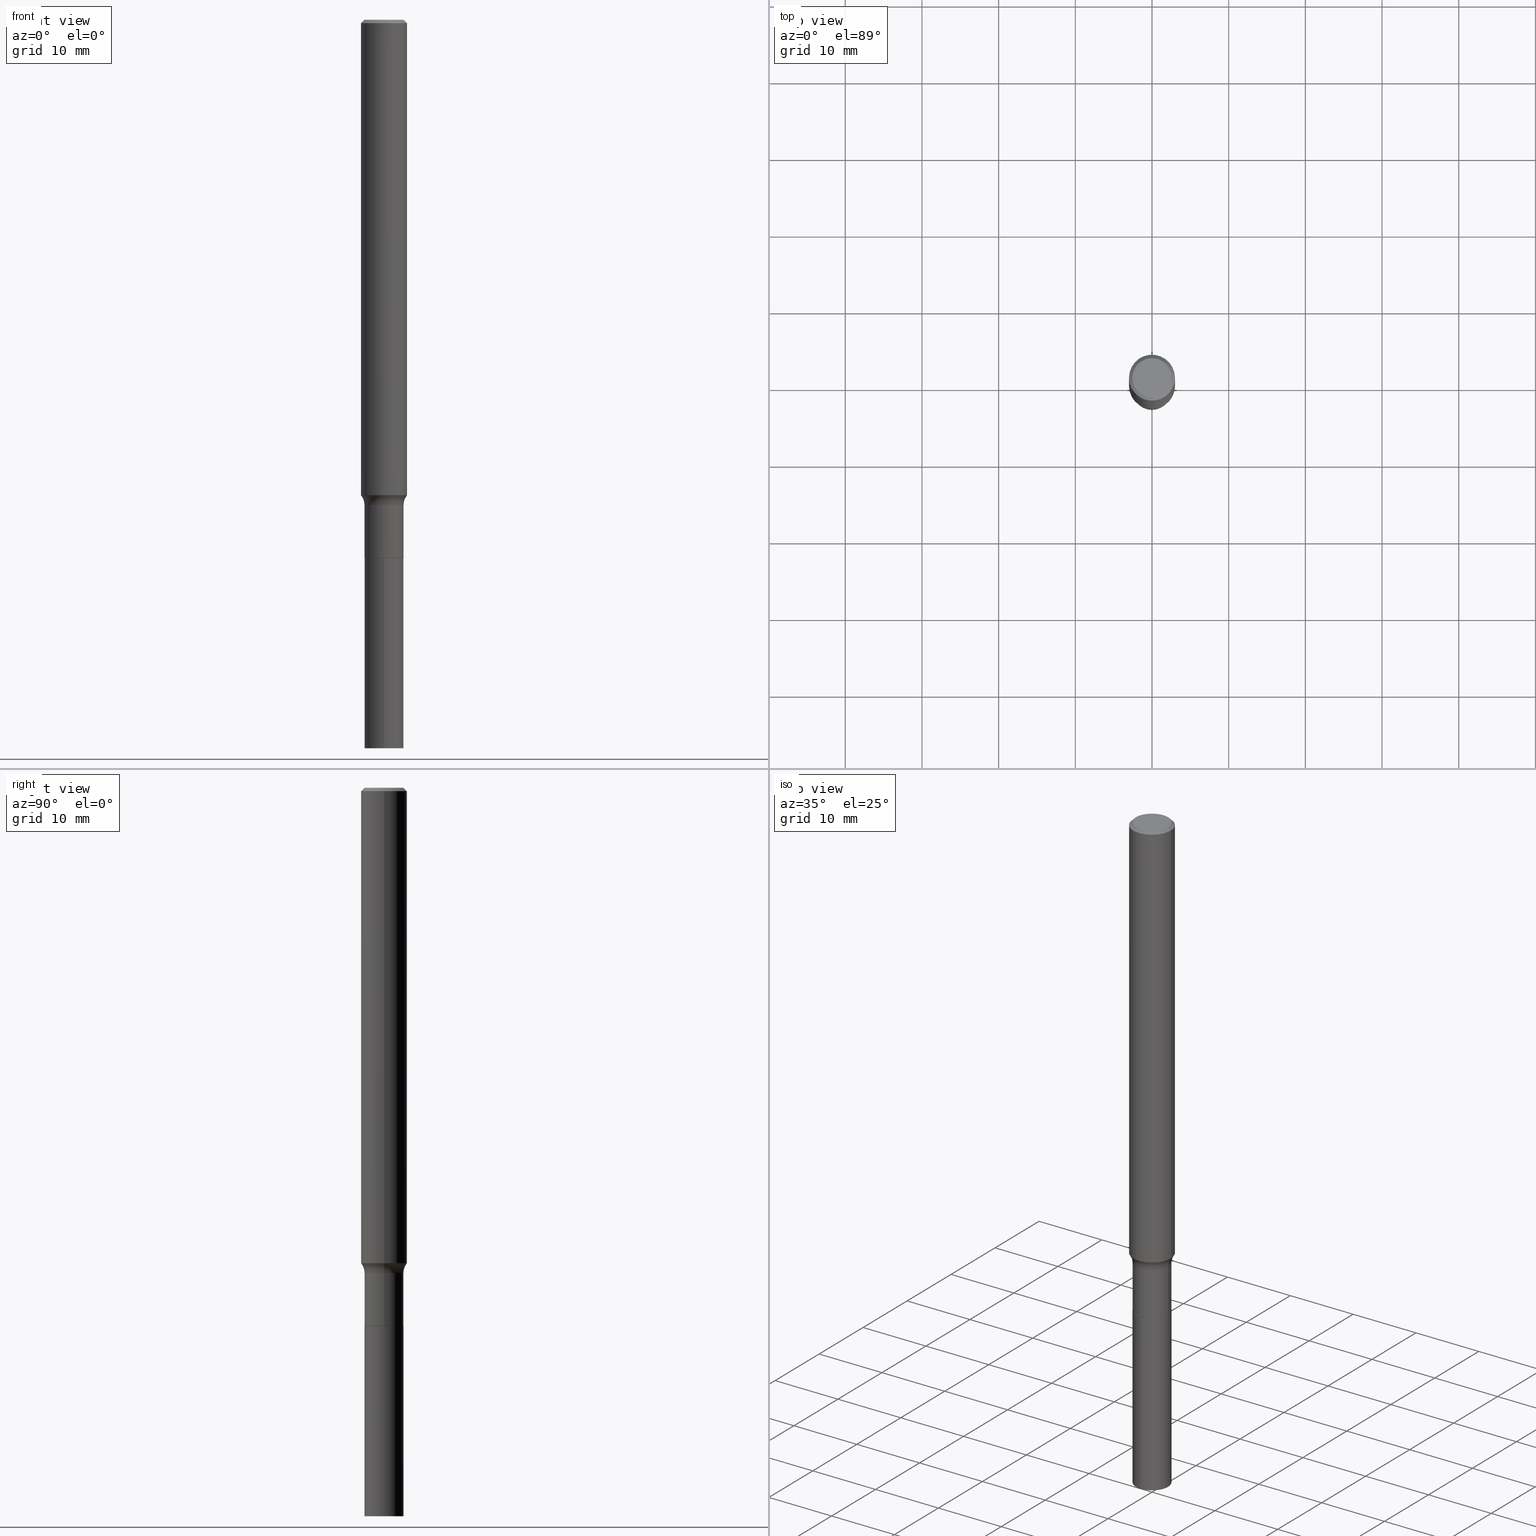
[diagram: canonical four-view strip — front | top / right | iso, engineering-drawing reading convention]
A machine part, canonical four-view strip (front | top / right | iso — engineering-drawing reading convention). The complete STEP part file that produces these views, byte-faithful:
ISO-10303-21;
HEADER;
FILE_DESCRIPTION (( 'STEP AP203' ),
    '1' );
FILE_NAME ('67837.STEP',
    '2024-04-19T16:38:18',
    ( '' ),
    ( '' ),
    'SwSTEP 2.0',
    'SolidWorks 2023',
    '' );
FILE_SCHEMA (( 'CONFIG_CONTROL_DESIGN' ));
ENDSEC;

DATA;
#1 = ORIENTED_EDGE ( 'NONE', *, *, #145, .F. ) ;
#2 = EDGE_CURVE ( 'NONE', #70, #217, #190, .T. ) ;
#3 = CARTESIAN_POINT ( 'NONE',  ( 0.000000000000000000, 0.000000000000000000, 0.000000000000000000 ) ) ;
#4 = ORIENTED_EDGE ( 'NONE', *, *, #209, .F. ) ;
#5 = ORIENTED_EDGE ( 'NONE', *, *, #417, .F. ) ;
#6 = CC_DESIGN_PERSON_AND_ORGANIZATION_ASSIGNMENT ( #416, #195, ( #339 ) ) ;
#7 = DIRECTION ( 'NONE',  ( 1.000000000000000000, -6.982962677686266711E-15, 4.875668750515085695E-29 ) ) ;
#8 = EDGE_LOOP ( 'NONE', ( #297, #386 ) ) ;
#9 = APPROVAL_STATUS ( 'not_yet_approved' ) ;
#10 = EDGE_LOOP ( 'NONE', ( #435, #31, #326, #206 ) ) ;
#11 = ORIENTED_EDGE ( 'NONE', *, *, #396, .F. ) ;
#12 = CARTESIAN_POINT ( 'NONE',  ( -0.09990000000000000269, -8.935179815292927924E-15, -2.763200000000000323 ) ) ;
#13 = CARTESIAN_POINT ( 'NONE',  ( -0.1004000000000000031, -8.458387422303918210E-15, -2.762700000000000156 ) ) ;
#14 = EDGE_CURVE ( 'NONE', #118, #21, #308, .T. ) ;
#15 = DIRECTION ( 'NONE',  ( 1.000000000000000000, 0.000000000000000000, 0.000000000000000000 ) ) ;
#16 = CARTESIAN_POINT ( 'NONE',  ( 6.757319405250769322E-29, -9.647661235491380709E-15, -2.763200000000000323 ) ) ;
#17 = EDGE_LOOP ( 'NONE', ( #432, #225 ) ) ;
#18 = PERSON_AND_ORGANIZATION_ROLE ( 'design_supplier' ) ;
#19 = VECTOR ( 'NONE', #176, 39.37007874015748143 ) ;
#20 = CYLINDRICAL_SURFACE ( 'NONE', #222, 0.1004000000000000031 ) ;
#21 = VERTEX_POINT ( 'NONE', #72 ) ;
#22 = APPROVAL ( #9, 'UNSPECIFIED' ) ;
#23 = DIRECTION ( 'NONE',  ( 1.000000000000000000, -6.982962677686274599E-15, 0.000000000000000000 ) ) ;
#24 = CARTESIAN_POINT ( 'NONE',  ( -7.010894528396336292E-16, -0.1004000000000096482, -2.763199999999999434 ) ) ;
#25 = DIRECTION ( 'NONE',  ( -2.445468806185136597E-29, 3.491481338843145583E-15, 1.000000000000000000 ) ) ;
#26 = AXIS2_PLACEMENT_3D ( 'NONE', #418, #270, #374 ) ;
#27 = CC_DESIGN_APPROVAL ( #258, ( #339 ) ) ;
#28 = DIRECTION ( 'NONE',  ( 6.982962677686265922E-15, 1.000000000000000000, -3.501188089901729576E-15 ) ) ;
#29 = EDGE_CURVE ( 'NONE', #70, #219, #37, .T. ) ;
#30 = CARTESIAN_POINT ( 'NONE',  ( 9.139920139182118548E-29, -1.306832199932537301E-14, -3.740200000000000635 ) ) ;
#31 = ORIENTED_EDGE ( 'NONE', *, *, #329, .T. ) ;
#32 = DIRECTION ( 'NONE',  ( -2.438690618148768155E-29, 3.501188089901729576E-15, 1.000000000000000000 ) ) ;
#33 = AXIS2_PLACEMENT_3D ( 'NONE', #198, #334, #408 ) ;
#34 = ORIENTED_EDGE ( 'NONE', *, *, #396, .T. ) ;
#35 = DIRECTION ( 'NONE',  ( -2.445468806185136597E-29, 3.491481338843145583E-15, 1.000000000000000000 ) ) ;
#36 = DIRECTION ( 'NONE',  ( -2.438690618148768155E-29, 3.501188089901729576E-15, 1.000000000000000000 ) ) ;
#37 = LINE ( 'NONE', #400, #458 ) ;
#38 = LOCAL_TIME ( 12, 38, 18.00000000000000000, #81 ) ;
#39 = EDGE_CURVE ( 'NONE', #274, #409, #285, .T. ) ;
#40 = AXIS2_PLACEMENT_3D ( 'NONE', #411, #232, #196 ) ;
#41 = AXIS2_PLACEMENT_3D ( 'NONE', #3, #431, #397 ) ;
#42 = EDGE_LOOP ( 'NONE', ( #109, #398, #1, #152 ) ) ;
#43 = CARTESIAN_POINT ( 'NONE',  ( 0.1181000000000000105, -8.865394841523548556E-16, -0.01771500000000011607 ) ) ;
#44 = CARTESIAN_POINT ( 'NONE',  ( 7.015701749847187307E-46, -1.001656274515824970E-31, -2.868857591682589212E-17 ) ) ;
#45 = ORIENTED_EDGE ( 'NONE', *, *, #305, .T. ) ;
#46 = COORDINATED_UNIVERSAL_TIME_OFFSET ( 5, 0, .BEHIND. ) ;
#47 = CARTESIAN_POINT ( 'NONE',  ( -0.1003999999999999893, 7.133849067031405103E-16, -4.938610830615924293E-30 ) ) ;
#48 = AXIS2_PLACEMENT_3D ( 'NONE', #80, #267, #23 ) ;
#49 = CC_DESIGN_PERSON_AND_ORGANIZATION_ASSIGNMENT ( #442, #128, ( #389 ) ) ;
#50 = FACE_OUTER_BOUND ( 'NONE', #146, .T. ) ;
#51 = CARTESIAN_POINT ( 'NONE',  ( 6.756096670847677642E-29, -9.645915494821958416E-15, -2.762700000000000156 ) ) ;
#52 = PERSON_AND_ORGANIZATION ( #224, #350 ) ;
#53 = FACE_OUTER_BOUND ( 'NONE', #94, .T. ) ;
#54 = ORIENTED_EDGE ( 'NONE', *, *, #425, .F. ) ;
#55 = CC_DESIGN_PERSON_AND_ORGANIZATION_ASSIGNMENT ( #269, #92, ( #200 ) ) ;
#56 = CC_DESIGN_SECURITY_CLASSIFICATION ( #200, ( #293 ) ) ;
#57 = DATE_AND_TIME ( #120, #260 ) ;
#58 = CIRCLE ( 'NONE', #48, 0.1003999999999999754 ) ;
#59 = CARTESIAN_POINT ( 'NONE',  ( 7.133849067032322153E-16, 0.1003999999999903719, -2.763200000000000767 ) ) ;
#60 = DIRECTION ( 'NONE',  ( 2.438690618148767874E-29, -3.501188089901729576E-15, -1.000000000000000000 ) ) ;
#61 = PRODUCT_DEFINITION_SHAPE ( 'NONE', 'NONE',  #339 ) ;
#62 = CARTESIAN_POINT ( 'NONE',  ( 0.000000000000000000, 0.000000000000000000, 0.000000000000000000 ) ) ;
#63 = ORIENTED_EDGE ( 'NONE', *, *, #318, .F. ) ;
#64 = APPLICATION_CONTEXT ( 'configuration controlled 3d designs of mechanical parts and assemblies' ) ;
#65 = DIRECTION ( 'NONE',  ( -2.445468806185136597E-29, 3.491481338843145583E-15, 1.000000000000000000 ) ) ;
#66 = AXIS2_PLACEMENT_3D ( 'NONE', #164, #312, #376 ) ;
#67 = DIRECTION ( 'NONE',  ( 0.7071067811865459074, -7.319954787623251312E-15, -0.7071067811865492381 ) ) ;
#68 = CC_DESIGN_DATE_AND_TIME_ASSIGNMENT ( #275, #155, ( #339 ) ) ;
#69 = DIRECTION ( 'NONE',  ( -1.000000000000000000, 6.982962677686265922E-15, -4.876176775795935793E-29 ) ) ;
#70 = VERTEX_POINT ( 'NONE', #328 ) ;
#71 = CARTESIAN_POINT ( 'NONE',  ( 0.1803999999999999770, -9.957355630246762542E-15, -2.491100000000000314 ) ) ;
#72 = CARTESIAN_POINT ( 'NONE',  ( -7.010894528396336292E-16, -0.1004000000000096482, -2.763199999999999434 ) ) ;
#73 = ORIENTED_EDGE ( 'NONE', *, *, #425, .T. ) ;
#74 = ORIENTED_EDGE ( 'NONE', *, *, #29, .F. ) ;
#75 = ADVANCED_FACE ( 'NONE', ( #221 ), #466, .T. ) ;
#76 = ORIENTED_EDGE ( 'NONE', *, *, #231, .F. ) ;
#77 = VECTOR ( 'NONE', #205, 39.37007874015748143 ) ;
#78 = DIRECTION ( 'NONE',  ( -2.445468806185136597E-29, 3.491481338843145583E-15, 1.000000000000000000 ) ) ;
#79 = CALENDAR_DATE ( 2024, 19, 4 ) ;
#80 = CARTESIAN_POINT ( 'NONE',  ( 6.091907343087794334E-29, -8.697629163192159813E-15, -2.491100000000000314 ) ) ;
#81 = COORDINATED_UNIVERSAL_TIME_OFFSET ( 5, 0, .BEHIND. ) ;
#82 = CARTESIAN_POINT ( 'NONE',  ( -0.09990000000000000269, -8.937829042467041492E-15, -2.763200000000000323 ) ) ;
#83 = CIRCLE ( 'NONE', #292, 0.1003850000000000159 ) ;
#84 = LOCAL_TIME ( 12, 38, 18.00000000000000000, #46 ) ;
#85 = COORDINATED_UNIVERSAL_TIME_OFFSET ( 5, 0, .BEHIND. ) ;
#86 = DIRECTION ( 'NONE',  ( -6.982962677686266711E-15, -1.000000000000000000, 5.441928274231599754E-15 ) ) ;
#87 = ORIENTED_EDGE ( 'NONE', *, *, #167, .F. ) ;
#88 = DIRECTION ( 'NONE',  ( 0.000000000000000000, 0.000000000000000000, 1.000000000000000000 ) ) ;
#89 = DIRECTION ( 'NONE',  ( 2.445468806185136597E-29, -3.491481338843145583E-15, -1.000000000000000000 ) ) ;
#90 = EDGE_CURVE ( 'NONE', #242, #365, #315, .T. ) ;
#91 = EDGE_LOOP ( 'NONE', ( #172, #303, #289, #4 ) ) ;
#92 = PERSON_AND_ORGANIZATION_ROLE ( 'classification_officer' ) ;
#93 = CARTESIAN_POINT ( 'NONE',  ( 7.133849067032080565E-16, 0.1003999999999903581, -2.763200000000000767 ) ) ;
#94 = EDGE_LOOP ( 'NONE', ( #149, #187, #462, #378 ) ) ;
#95 = CIRCLE ( 'NONE', #40, 0.1181000000000000105 ) ;
#96 = CARTESIAN_POINT ( 'NONE',  ( -0.1181000000000001632, 8.391509709326794790E-16, -5.809262341591051491E-30 ) ) ;
#97 = CARTESIAN_POINT ( 'NONE',  ( 6.757319405250769322E-29, -9.647661235491380709E-15, -2.763200000000000323 ) ) ;
#98 = ORIENTED_EDGE ( 'NONE', *, *, #119, .T. ) ;
#99 = DIRECTION ( 'NONE',  ( -1.000000000000000000, 6.982962677686267499E-15, 0.000000000000000000 ) ) ;
#100 = FACE_OUTER_BOUND ( 'NONE', #10, .T. ) ;
#101 = CIRCLE ( 'NONE', #377, 0.1003999999999999754 ) ;
#102 = APPROVAL_PERSON_ORGANIZATION ( #331, #22, #117 ) ;
#103 = DIRECTION ( 'NONE',  ( -6.982962677686266711E-15, -1.000000000000000000, 5.441928274231599754E-15 ) ) ;
#104 = EDGE_CURVE ( 'NONE', #300, #353, #83, .T. ) ;
#105 = ORIENTED_EDGE ( 'NONE', *, *, #268, .T. ) ;
#106 = MANIFOLD_SOLID_BREP ( 'Body-Move/Copy2[2]', #460 ) ;
#107 = CIRCLE ( 'NONE', #434, 0.1003850000000000159 ) ;
#108 = DIRECTION ( 'NONE',  ( -2.445468806185136597E-29, 3.491481338843145583E-15, 1.000000000000000000 ) ) ;
#109 = ORIENTED_EDGE ( 'NONE', *, *, #310, .T. ) ;
#110 = EDGE_CURVE ( 'NONE', #134, #391, #245, .T. ) ;
#111 = DIRECTION ( 'NONE',  ( -2.445468806185136877E-29, 3.491481338843145188E-15, 1.000000000000000000 ) ) ;
#112 = ORIENTED_EDGE ( 'NONE', *, *, #90, .F. ) ;
#113 = VERTEX_POINT ( 'NONE', #194 ) ;
#114 = CARTESIAN_POINT ( 'NONE',  ( 0.09990000000000000269, -1.034525920699223878E-14, -2.763200000000000323 ) ) ;
#115 = DIRECTION ( 'NONE',  ( -2.445468806185136597E-29, 3.491481338843145583E-15, 1.000000000000000000 ) ) ;
#116 = VECTOR ( 'NONE', #243, 39.37007874015748143 ) ;
#117 = APPROVAL_ROLE ( '' ) ;
#118 = VERTEX_POINT ( 'NONE', #59 ) ;
#119 = EDGE_CURVE ( 'NONE', #238, #217, #228, .T. ) ;
#120 = CALENDAR_DATE ( 2024, 19, 4 ) ;
#121 = CARTESIAN_POINT ( 'NONE',  ( -0.1181000000000003020, -7.683252086848746788E-15, -2.440913248760255172 ) ) ;
#122 = CARTESIAN_POINT ( 'NONE',  ( 4.332147990156997620E-31, -6.185159191760672860E-17, -0.01771500000000011607 ) ) ;
#123 = ORIENTED_EDGE ( 'NONE', *, *, #268, .F. ) ;
#124 = CONICAL_SURFACE ( 'NONE', #362, 0.1181000000000000105, 0.7853981633974459475 ) ;
#125 = ADVANCED_FACE ( 'NONE', ( #369 ), #188, .F. ) ;
#126 = DATE_AND_TIME ( #454, #180 ) ;
#127 = LINE ( 'NONE', #47, #343 ) ;
#128 = PERSON_AND_ORGANIZATION_ROLE ( 'design_owner' ) ;
#129 = DIRECTION ( 'NONE',  ( -6.982962677686265922E-15, -1.000000000000000000, 3.501188089901729576E-15 ) ) ;
#130 = DIRECTION ( 'NONE',  ( 1.000000000000000000, -6.982962677686267499E-15, 0.000000000000000000 ) ) ;
#131 = ORIENTED_EDGE ( 'NONE', *, *, #248, .T. ) ;
#132 = AXIS2_PLACEMENT_3D ( 'NONE', #30, #32, #174 ) ;
#133 = DIRECTION ( 'NONE',  ( -2.438088387897960049E-29, 3.491481338843145188E-15, 1.000000000000000000 ) ) ;
#134 = VERTEX_POINT ( 'NONE', #341 ) ;
#135 = EDGE_CURVE ( 'NONE', #299, #238, #349, .T. ) ;
#136 = FACE_OUTER_BOUND ( 'NONE', #348, .T. ) ;
#137 = DIRECTION ( 'NONE',  ( 2.445468806185136597E-29, -3.491481338843145583E-15, -1.000000000000000000 ) ) ;
#138 = CC_DESIGN_PERSON_AND_ORGANIZATION_ASSIGNMENT ( #163, #18, ( #293 ) ) ;
#139 = PLANE ( 'NONE',  #414 ) ;
#140 = TOROIDAL_SURFACE ( 'NONE', #467, 0.1803999999999999770, 0.08000000000000002942 ) ;
#141 = ORIENTED_EDGE ( 'NONE', *, *, #252, .F. ) ;
#142 = LENGTH_MEASURE_WITH_UNIT ( LENGTH_MEASURE( 0.02539999999999999897 ), #216 );
#143 = DIRECTION ( 'NONE',  ( -2.445468806185136877E-29, 3.491481338843145188E-15, 1.000000000000000000 ) ) ;
#144 = VECTOR ( 'NONE', #336, 39.37007874015748143 ) ;
#145 = EDGE_CURVE ( 'NONE', #21, #118, #168, .T. ) ;
#146 = EDGE_LOOP ( 'NONE', ( #141, #325, #278, #444 ) ) ;
#147 = ORIENTED_EDGE ( 'NONE', *, *, #2, .F. ) ;
#148 = CYLINDRICAL_SURFACE ( 'NONE', #41, 0.1003999999999999893 ) ;
#149 = ORIENTED_EDGE ( 'NONE', *, *, #329, .F. ) ;
#150 = ORIENTED_EDGE ( 'NONE', *, *, #252, .T. ) ;
#151 = ADVANCED_FACE ( 'NONE', ( #420 ), #423, .T. ) ;
#152 = ORIENTED_EDGE ( 'NONE', *, *, #305, .F. ) ;
#153 = VECTOR ( 'NONE', #371, 39.37007874015748143 ) ;
#154 = FACE_OUTER_BOUND ( 'NONE', #42, .T. ) ;
#155 = DATE_TIME_ROLE ( 'creation_date' ) ;
#156 = DIRECTION ( 'NONE',  ( -2.445468806185136597E-29, 3.491481338843145583E-15, 1.000000000000000000 ) ) ;
#157 = EDGE_LOOP ( 'NONE', ( #421, #443, #73, #76 ) ) ;
#158 = PERSON_AND_ORGANIZATION_ROLE ( 'creator' ) ;
#159 = DIRECTION ( 'NONE',  ( 1.000000000000000000, -6.982962677686266711E-15, 4.875668750515085695E-29 ) ) ;
#160 = EDGE_LOOP ( 'NONE', ( #63, #11, #105, #412 ) ) ;
#161 =( GEOMETRIC_REPRESENTATION_CONTEXT ( 3 ) GLOBAL_UNCERTAINTY_ASSIGNED_CONTEXT ( ( #429 ) ) GLOBAL_UNIT_ASSIGNED_CONTEXT ( ( #298, #261, #366 ) ) REPRESENTATION_CONTEXT ( 'NONE', 'WORKASPACE' ) );
#162 = AXIS2_PLACEMENT_3D ( 'NONE', #220, #35, #212 ) ;
#163 = PERSON_AND_ORGANIZATION ( #224, #350 ) ;
#164 = CARTESIAN_POINT ( 'NONE',  ( 0.000000000000000000, 0.000000000000000000, 0.000000000000000000 ) ) ;
#165 = DIRECTION ( 'NONE',  ( -2.445468806185136877E-29, 3.491481338843145188E-15, 1.000000000000000000 ) ) ;
#166 = DIRECTION ( 'NONE',  ( -2.445468806185136597E-29, 3.491481338843145583E-15, 1.000000000000000000 ) ) ;
#167 = EDGE_CURVE ( 'NONE', #134, #118, #235, .T. ) ;
#168 = CIRCLE ( 'NONE', #26, 0.1004000000000000031 ) ;
#169 = CARTESIAN_POINT ( 'NONE',  ( 0.000000000000000000, 0.000000000000000000, 0.000000000000000000 ) ) ;
#170 = ADVANCED_FACE ( 'NONE', ( #50 ), #140, .F. ) ;
#171 = CARTESIAN_POINT ( 'NONE',  ( 0.1181000000000000105, -8.720764054544246253E-16, -0.01771500000000011607 ) ) ;
#172 = ORIENTED_EDGE ( 'NONE', *, *, #215, .F. ) ;
#173 = AXIS2_PLACEMENT_3D ( 'NONE', #404, #78, #367 ) ;
#174 = DIRECTION ( 'NONE',  ( -6.982962677686266711E-15, -1.000000000000000000, 5.441928274231598965E-15 ) ) ;
#175 = AXIS2_PLACEMENT_3D ( 'NONE', #430, #133, #281 ) ;
#176 = DIRECTION ( 'NONE',  ( 0.7071067811864267805, -2.468850131080992517E-15, 0.7071067811866682540 ) ) ;
#177 = EDGE_LOOP ( 'NONE', ( #360, #199 ) ) ;
#178 = EDGE_LOOP ( 'NONE', ( #301, #257, #131, #123 ) ) ;
#179 = ADVANCED_FACE ( 'NONE', ( #154 ), #20, .T. ) ;
#180 = LOCAL_TIME ( 12, 38, 18.00000000000000000, #85 ) ;
#181 = LINE ( 'NONE', #324, #286 ) ;
#182 = ORIENTED_EDGE ( 'NONE', *, *, #209, .T. ) ;
#183 = AXIS2_PLACEMENT_3D ( 'NONE', #456, #306, #129 ) ;
#184 = APPROVAL_PERSON_ORGANIZATION ( #407, #186, #419 ) ;
#185 = DIRECTION ( 'NONE',  ( 1.000000000000000000, -6.982962677686267499E-15, 0.000000000000000000 ) ) ;
#186 = APPROVAL ( #236, 'UNSPECIFIED' ) ;
#187 = ORIENTED_EDGE ( 'NONE', *, *, #90, .T. ) ;
#188 = PLANE ( 'NONE',  #183 ) ;
#189 = AXIS2_PLACEMENT_3D ( 'NONE', #255, #395, #436 ) ;
#190 = CIRCLE ( 'NONE', #189, 0.1004000000000000031 ) ;
#191 = ORIENTED_EDGE ( 'NONE', *, *, #135, .T. ) ;
#192 = CIRCLE ( 'NONE', #132, 0.1004000000000000170 ) ;
#193 = APPROVAL_DATE_TIME ( #126, #258 ) ;
#194 = CARTESIAN_POINT ( 'NONE',  ( -0.1003999999999999754, -8.458387422303918210E-15, -2.491100000000000314 ) ) ;
#195 = PERSON_AND_ORGANIZATION_ROLE ( 'creator' ) ;
#196 = DIRECTION ( 'NONE',  ( 1.000000000000000000, -6.982962677686267499E-15, 0.000000000000000000 ) ) ;
#197 = APPROVAL_STATUS ( 'not_yet_approved' ) ;
#198 = CARTESIAN_POINT ( 'NONE',  ( 9.139920139182118548E-29, -1.306832199932537301E-14, -3.740200000000000635 ) ) ;
#199 = ORIENTED_EDGE ( 'NONE', *, *, #14, .T. ) ;
#200 = SECURITY_CLASSIFICATION ( '', '', #311 ) ;
#201 = CYLINDRICAL_SURFACE ( 'NONE', #66, 0.1181000000000001632 ) ;
#202 = EDGE_LOOP ( 'NONE', ( #330, #401, #296, #74 ) ) ;
#203 = ADVANCED_FACE ( 'NONE', ( #53 ), #201, .T. ) ;
#204 = CARTESIAN_POINT ( 'NONE',  ( 6.091907343087794334E-29, -8.697629163192159813E-15, -2.491100000000000314 ) ) ;
#205 = DIRECTION ( 'NONE',  ( -2.438690618148768155E-29, 3.501188089901729576E-15, 1.000000000000000000 ) ) ;
#206 = ORIENTED_EDGE ( 'NONE', *, *, #433, .F. ) ;
#207 = VECTOR ( 'NONE', #67, 39.37007874015748143 ) ;
#208 = CARTESIAN_POINT ( 'NONE',  ( -0.1181000000000000105, 7.628363003171415710E-16, -0.01771500000000011607 ) ) ;
#209 = EDGE_CURVE ( 'NONE', #113, #219, #58, .T. ) ;
#210 = DIRECTION ( 'NONE',  ( -2.438690618148768155E-29, 3.501188089901729576E-15, 1.000000000000000000 ) ) ;
#211 = CYLINDRICAL_SURFACE ( 'NONE', #393, 0.1181000000000001632 ) ;
#212 = DIRECTION ( 'NONE',  ( 1.000000000000000000, -6.982962677686265133E-15, 4.883557194083111780E-29 ) ) ;
#213 = VECTOR ( 'NONE', #279, 39.37007874015748143 ) ;
#214 = EDGE_LOOP ( 'NONE', ( #191, #98, #147, #54 ) ) ;
#215 = EDGE_CURVE ( 'NONE', #217, #113, #127, .T. ) ;
#216 =( LENGTH_UNIT ( ) NAMED_UNIT ( * ) SI_UNIT ( $, .METRE. ) );
#217 = VERTEX_POINT ( 'NONE', #13 ) ;
#218 = DIRECTION ( 'NONE',  ( 1.000000000000000000, -6.982962677686267499E-15, 0.000000000000000000 ) ) ;
#219 = VERTEX_POINT ( 'NONE', #313 ) ;
#220 = CARTESIAN_POINT ( 'NONE',  ( 6.091907343087794334E-29, -8.697629163192159813E-15, -2.491100000000000314 ) ) ;
#221 = FACE_OUTER_BOUND ( 'NONE', #214, .T. ) ;
#222 = AXIS2_PLACEMENT_3D ( 'NONE', #16, #344, #86 ) ;
#223 = CC_DESIGN_PERSON_AND_ORGANIZATION_ASSIGNMENT ( #52, #158, ( #293 ) ) ;
#224 = PERSON ( 'UNSPECIFIED', 'UNSPECIFIED', 'UNSPECIFIED', ('UNSPECIFIED'), ('UNSPECIFIED'), ('UNSPECIFIED') ) ;
#225 = ORIENTED_EDGE ( 'NONE', *, *, #110, .F. ) ;
#226 = COORDINATED_UNIVERSAL_TIME_OFFSET ( 5, 0, .BEHIND. ) ;
#227 = DIRECTION ( 'NONE',  ( 1.000000000000000000, -6.982962677686262766E-15, 0.000000000000000000 ) ) ;
#228 = LINE ( 'NONE', #82, #153 ) ;
#229 = AXIS2_PLACEMENT_3D ( 'NONE', #276, #448, #273 ) ;
#230 = DATE_AND_TIME ( #79, #38 ) ;
#231 = EDGE_CURVE ( 'NONE', #217, #70, #402, .T. ) ;
#232 = DIRECTION ( 'NONE',  ( -2.445468806185136597E-29, 3.491481338843145583E-15, 1.000000000000000000 ) ) ;
#233 = ORIENTED_EDGE ( 'NONE', *, *, #14, .F. ) ;
#234 = CALENDAR_DATE ( 2024, 19, 4 ) ;
#235 = LINE ( 'NONE', #93, #144 ) ;
#236 = APPROVAL_STATUS ( 'not_yet_approved' ) ;
#237 = DIRECTION ( 'NONE',  ( -2.445468806185136597E-29, 3.491481338843145583E-15, 1.000000000000000000 ) ) ;
#238 = VERTEX_POINT ( 'NONE', #12 ) ;
#239 = EDGE_CURVE ( 'NONE', #365, #242, #254, .T. ) ;
#240 = DIRECTION ( 'NONE',  ( 1.000000000000000000, -6.982962677686274599E-15, 0.000000000000000000 ) ) ;
#241 = DIRECTION ( 'NONE',  ( -1.000000000000000000, 7.105427357600995548E-15, 0.000000000000000000 ) ) ;
#242 = VERTEX_POINT ( 'NONE', #121 ) ;
#243 = DIRECTION ( 'NONE',  ( -0.7071067811865459074, 2.468850131082239706E-15, -0.7071067811865492381 ) ) ;
#244 = CC_DESIGN_APPROVAL ( #186, ( #293 ) ) ;
#245 = CIRCLE ( 'NONE', #33, 0.1004000000000000170 ) ;
#246 = CC_DESIGN_APPROVAL ( #22, ( #200 ) ) ;
#247 = FACE_OUTER_BOUND ( 'NONE', #259, .T. ) ;
#248 = EDGE_CURVE ( 'NONE', #409, #274, #95, .T. ) ;
#249 = MANIFOLD_SOLID_BREP ( 'Body-Move/Copy2[1]', #392 ) ;
#250 = CYLINDRICAL_SURFACE ( 'NONE', #327, 0.1003999999999999893 ) ;
#251 = PLANE ( 'NONE',  #253 ) ;
#252 = EDGE_CURVE ( 'NONE', #242, #113, #441, .T. ) ;
#253 = AXIS2_PLACEMENT_3D ( 'NONE', #438, #399, #69 ) ;
#254 = CIRCLE ( 'NONE', #321, 0.1181000000000003020 ) ;
#255 = CARTESIAN_POINT ( 'NONE',  ( 6.756096670847677642E-29, -9.645915494821958416E-15, -2.762700000000000156 ) ) ;
#256 = CARTESIAN_POINT ( 'NONE',  ( 6.757319405250769322E-29, -9.647661235491380709E-15, -2.763200000000000323 ) ) ;
#257 = ORIENTED_EDGE ( 'NONE', *, *, #318, .T. ) ;
#258 = APPROVAL ( #197, 'UNSPECIFIED' ) ;
#259 = EDGE_LOOP ( 'NONE', ( #34, #406 ) ) ;
#260 = LOCAL_TIME ( 12, 38, 18.00000000000000000, #226 ) ;
#261 =( NAMED_UNIT ( * ) PLANE_ANGLE_UNIT ( ) SI_UNIT ( $, .RADIAN. ) );
#262 = AXIS2_PLACEMENT_3D ( 'NONE', #364, #263, #185 ) ;
#263 = DIRECTION ( 'NONE',  ( -2.445468806185136597E-29, 3.491481338843145583E-15, 1.000000000000000000 ) ) ;
#264 = AXIS2_PLACEMENT_3D ( 'NONE', #51, #266, #227 ) ;
#265 = PERSON_AND_ORGANIZATION ( #224, #350 ) ;
#266 = DIRECTION ( 'NONE',  ( -2.445468806185136597E-29, 3.491481338843145583E-15, 1.000000000000000000 ) ) ;
#267 = DIRECTION ( 'NONE',  ( -2.445468806185136597E-29, 3.491481338843145583E-15, 1.000000000000000000 ) ) ;
#268 = EDGE_CURVE ( 'NONE', #353, #274, #382, .T. ) ;
#269 = PERSON_AND_ORGANIZATION ( #224, #350 ) ;
#270 = DIRECTION ( 'NONE',  ( -2.438690618148768155E-29, 3.501188089901729576E-15, 1.000000000000000000 ) ) ;
#271 = AXIS2_PLACEMENT_3D ( 'NONE', #256, #390, #218 ) ;
#272 = APPLICATION_PROTOCOL_DEFINITION ( 'international standard', 'config_control_design', 1994, #64 ) ;
#273 = DIRECTION ( 'NONE',  ( 1.000000000000000000, -6.982962677686267499E-15, 0.000000000000000000 ) ) ;
#274 = VERTEX_POINT ( 'NONE', #388 ) ;
#275 = DATE_AND_TIME ( #234, #290 ) ;
#276 = CARTESIAN_POINT ( 'NONE',  ( 6.757319405250769322E-29, -9.647661235491380709E-15, -2.763200000000000323 ) ) ;
#277 = EDGE_CURVE ( 'NONE', #219, #113, #101, .T. ) ;
#278 = ORIENTED_EDGE ( 'NONE', *, *, #417, .T. ) ;
#279 = DIRECTION ( 'NONE',  ( -2.445468806185136877E-29, 3.491481338843145188E-15, 1.000000000000000000 ) ) ;
#280 = AXIS2_PLACEMENT_3D ( 'NONE', #97, #210, #103 ) ;
#281 = DIRECTION ( 'NONE',  ( 1.000000000000000000, -6.982962677686265922E-15, 4.876176775795935793E-29 ) ) ;
#282 = CARTESIAN_POINT ( 'NONE',  ( 4.332147990156997620E-31, -6.185159191760672860E-17, -0.01771500000000011607 ) ) ;
#283 = ADVANCED_FACE ( 'NONE', ( #463 ), #139, .F. ) ;
#284 = CARTESIAN_POINT ( 'NONE',  ( 0.1181000000000003020, -9.347090950016178769E-15, -2.440913248760255172 ) ) ;
#285 = CIRCLE ( 'NONE', #342, 0.1181000000000000105 ) ;
#286 = VECTOR ( 'NONE', #111, 39.37007874015748143 ) ;
#287 = ADVANCED_FACE ( 'NONE', ( #100 ), #211, .T. ) ;
#288 = CARTESIAN_POINT ( 'NONE',  ( -7.010894528396099633E-16, -0.1004000000000130899, -3.740200000000000191 ) ) ;
#289 = ORIENTED_EDGE ( 'NONE', *, *, #29, .T. ) ;
#290 = LOCAL_TIME ( 12, 38, 18.00000000000000000, #337 ) ;
#291 = DESIGN_CONTEXT ( 'detailed design', #64, 'design' ) ;
#292 = AXIS2_PLACEMENT_3D ( 'NONE', #44, #455, #159 ) ;
#293 = PRODUCT_DEFINITION_FORMATION_WITH_SPECIFIED_SOURCE ( 'ANY', '', #389, .NOT_KNOWN. ) ;
#294 = DIRECTION ( 'NONE',  ( 1.000000000000000000, -6.982962677686267499E-15, 0.000000000000000000 ) ) ;
#295 = APPLICATION_PROTOCOL_DEFINITION ( 'international standard', 'config_control_design', 1994, #445 ) ;
#296 = ORIENTED_EDGE ( 'NONE', *, *, #277, .F. ) ;
#297 = ORIENTED_EDGE ( 'NONE', *, *, #135, .F. ) ;
#298 =( CONVERSION_BASED_UNIT ( 'INCH', #142 ) LENGTH_UNIT ( ) NAMED_UNIT ( #379 ) );
#299 = VERTEX_POINT ( 'NONE', #345 ) ;
#300 = VERTEX_POINT ( 'NONE', #320 ) ;
#301 = ORIENTED_EDGE ( 'NONE', *, *, #104, .F. ) ;
#302 = AXIS2_PLACEMENT_3D ( 'NONE', #122, #89, #415 ) ;
#303 = ORIENTED_EDGE ( 'NONE', *, *, #231, .T. ) ;
#304 = CARTESIAN_POINT ( 'NONE',  ( 5.969177208447224708E-29, -8.522403057781427351E-15, -2.440913248760255172 ) ) ;
#305 = EDGE_CURVE ( 'NONE', #391, #21, #352, .T. ) ;
#306 = DIRECTION ( 'NONE',  ( -2.438690618148767874E-29, 3.501188089901729576E-15, 1.000000000000000000 ) ) ;
#307 = APPROVAL_PERSON_ORGANIZATION ( #265, #258, #446 ) ;
#308 = CIRCLE ( 'NONE', #427, 0.1004000000000000031 ) ;
#309 = AXIS2_PLACEMENT_3D ( 'NONE', #338, #465, #241 ) ;
#310 = EDGE_CURVE ( 'NONE', #391, #134, #192, .T. ) ;
#311 = SECURITY_CLASSIFICATION_LEVEL ( 'unclassified' ) ;
#312 = DIRECTION ( 'NONE',  ( -2.445468806185136597E-29, 3.491481338843145583E-15, 1.000000000000000000 ) ) ;
#313 = CARTESIAN_POINT ( 'NONE',  ( 0.1003999999999999754, -9.398718616031862467E-15, -2.491100000000000314 ) ) ;
#314 = LINE ( 'NONE', #171, #207 ) ;
#315 = CIRCLE ( 'NONE', #173, 0.1181000000000003020 ) ;
#316 = CIRCLE ( 'NONE', #271, 0.09990000000000000269 ) ;
#317 = FACE_OUTER_BOUND ( 'NONE', #160, .T. ) ;
#318 = EDGE_CURVE ( 'NONE', #300, #409, #314, .T. ) ;
#319 = FACE_OUTER_BOUND ( 'NONE', #157, .T. ) ;
#320 = CARTESIAN_POINT ( 'NONE',  ( 0.1003850000000000159, -7.803837484803599345E-16, -2.868857591682071522E-17 ) ) ;
#321 = AXIS2_PLACEMENT_3D ( 'NONE', #304, #156, #447 ) ;
#322 = ADVANCED_FACE ( 'NONE', ( #422 ), #459, .F. ) ;
#323 = DIRECTION ( 'NONE',  ( -2.445468806185136597E-29, 3.491481338843145583E-15, 1.000000000000000000 ) ) ;
#324 = CARTESIAN_POINT ( 'NONE',  ( 0.1181000000000001632, -8.246878922347493473E-16, 5.758764772215008848E-30 ) ) ;
#325 = ORIENTED_EDGE ( 'NONE', *, *, #239, .F. ) ;
#326 = ORIENTED_EDGE ( 'NONE', *, *, #248, .F. ) ;
#327 = AXIS2_PLACEMENT_3D ( 'NONE', #62, #323, #381 ) ;
#328 = CARTESIAN_POINT ( 'NONE',  ( 0.1004000000000000031, -1.034700494766165949E-14, -2.762700000000000156 ) ) ;
#329 = EDGE_CURVE ( 'NONE', #242, #274, #424, .T. ) ;
#330 = ORIENTED_EDGE ( 'NONE', *, *, #2, .T. ) ;
#331 = PERSON_AND_ORGANIZATION ( #224, #350 ) ;
#332 = ORIENTED_EDGE ( 'NONE', *, *, #110, .T. ) ;
#333 = ADVANCED_FACE ( 'NONE', ( #136 ), #426, .T. ) ;
#334 = DIRECTION ( 'NONE',  ( -2.438690618148768155E-29, 3.501188089901729576E-15, 1.000000000000000000 ) ) ;
#335 = CONICAL_SURFACE ( 'NONE', #461, 0.09990000000000000269, 0.7853981633972775267 ) ;
#336 = DIRECTION ( 'NONE',  ( -2.438690618148768155E-29, 3.501188089901729576E-15, 1.000000000000000000 ) ) ;
#337 = COORDINATED_UNIVERSAL_TIME_OFFSET ( 5, 0, .BEHIND. ) ;
#338 = CARTESIAN_POINT ( 'NONE',  ( -0.1803999999999999770, -7.415810067880939832E-15, -2.491100000000000314 ) ) ;
#339 = PRODUCT_DEFINITION ( 'UNKNOWN', '', #293, #291 ) ;
#340 = CALENDAR_DATE ( 2024, 19, 4 ) ;
#341 = CARTESIAN_POINT ( 'NONE',  ( 7.133849067032199880E-16, 0.1003999999999869580, -3.740200000000001079 ) ) ;
#342 = AXIS2_PLACEMENT_3D ( 'NONE', #358, #115, #294 ) ;
#343 = VECTOR ( 'NONE', #165, 39.37007874015748143 ) ;
#344 = DIRECTION ( 'NONE',  ( -2.438690618148768155E-29, 3.501188089901729576E-15, 1.000000000000000000 ) ) ;
#345 = CARTESIAN_POINT ( 'NONE',  ( 0.09990000000000000269, -1.034525920699223878E-14, -2.763200000000000323 ) ) ;
#346 = CARTESIAN_POINT ( 'NONE',  ( -0.1003850000000000159, 7.319105043583387675E-16, -2.868857591683090262E-17 ) ) ;
#347 = ADVANCED_FACE ( 'NONE', ( #464 ), #250, .T. ) ;
#348 = EDGE_LOOP ( 'NONE', ( #87, #332, #45, #233 ) ) ;
#349 = CIRCLE ( 'NONE', #229, 0.09990000000000000269 ) ;
#350 = ORGANIZATION ( 'UNSPECIFIED', 'UNSPECIFIED', '' ) ;
#351 = CARTESIAN_POINT ( 'NONE',  ( 6.757319405250769322E-29, -9.647661235491380709E-15, -2.763200000000000323 ) ) ;
#352 = LINE ( 'NONE', #24, #77 ) ;
#353 = VERTEX_POINT ( 'NONE', #346 ) ;
#354 = ADVANCED_FACE ( 'NONE', ( #319 ), #335, .T. ) ;
#355 = DIRECTION ( 'NONE',  ( 1.000000000000000000, -6.982962677686267499E-15, 4.876176775795936353E-29 ) ) ;
#356 = DIRECTION ( 'NONE',  ( 1.000000000000000000, -6.982962677686257244E-15, 0.000000000000000000 ) ) ;
#357 = DIRECTION ( 'NONE',  ( -6.982962677686266711E-15, -1.000000000000000000, 5.441928274231599754E-15 ) ) ;
#358 = CARTESIAN_POINT ( 'NONE',  ( 4.332147990156997620E-31, -6.185159191760672860E-17, -0.01771500000000011607 ) ) ;
#359 = CARTESIAN_POINT ( 'NONE',  ( 7.015701749847187307E-46, -1.001656274515824970E-31, -2.868857591682589212E-17 ) ) ;
#360 = ORIENTED_EDGE ( 'NONE', *, *, #145, .T. ) ;
#361 = ADVANCED_FACE ( 'NONE', ( #317 ), #124, .T. ) ;
#362 = AXIS2_PLACEMENT_3D ( 'NONE', #282, #137, #99 ) ;
#363 = LINE ( 'NONE', #114, #19 ) ;
#364 = CARTESIAN_POINT ( 'NONE',  ( 6.757319405250769322E-29, -9.647661235491380709E-15, -2.763200000000000323 ) ) ;
#365 = VERTEX_POINT ( 'NONE', #284 ) ;
#366 =( NAMED_UNIT ( * ) SI_UNIT ( $, .STERADIAN. ) SOLID_ANGLE_UNIT ( ) );
#367 = DIRECTION ( 'NONE',  ( 1.000000000000000000, -6.982962677686271444E-15, 0.000000000000000000 ) ) ;
#368 = SHAPE_DEFINITION_REPRESENTATION ( #61, #383 ) ;
#369 = FACE_OUTER_BOUND ( 'NONE', #17, .T. ) ;
#370 = APPROVAL_DATE_TIME ( #373, #186 ) ;
#371 = DIRECTION ( 'NONE',  ( -0.7071067811864267805, 7.493145998869918709E-15, 0.7071067811866682540 ) ) ;
#372 = CARTESIAN_POINT ( 'NONE',  ( 6.091907343087794334E-29, -8.697629163192159813E-15, -2.491100000000000314 ) ) ;
#373 = DATE_AND_TIME ( #340, #84 ) ;
#374 = DIRECTION ( 'NONE',  ( -6.982962677686266711E-15, -1.000000000000000000, 5.441928274231599754E-15 ) ) ;
#375 = CARTESIAN_POINT ( 'NONE',  ( 0.000000000000000000, 0.000000000000000000, 0.000000000000000000 ) ) ;
#376 = DIRECTION ( 'NONE',  ( 1.000000000000000000, -6.982962677686267499E-15, 4.876176775795936353E-29 ) ) ;
#377 = AXIS2_PLACEMENT_3D ( 'NONE', #204, #65, #240 ) ;
#378 = ORIENTED_EDGE ( 'NONE', *, *, #39, .F. ) ;
#379 = DIMENSIONAL_EXPONENTS ( 1.000000000000000000, 0.000000000000000000, 0.000000000000000000, 0.000000000000000000, 0.000000000000000000, 0.000000000000000000, 0.000000000000000000 ) ;
#380 = ADVANCED_FACE ( 'NONE', ( #247 ), #251, .F. ) ;
#381 = DIRECTION ( 'NONE',  ( 1.000000000000000000, -6.982962677686266711E-15, 4.876176775795935232E-29 ) ) ;
#382 = LINE ( 'NONE', #208, #116 ) ;
#383 = ADVANCED_BREP_SHAPE_REPRESENTATION ( '67837', ( #249, #106, #450 ), #161 ) ;
#384 = TOROIDAL_SURFACE ( 'NONE', #162, 0.1803999999999999770, 0.08000000000000002942 ) ;
#385 = CARTESIAN_POINT ( 'NONE',  ( 6.757319405250769322E-29, -9.647661235491380709E-15, -2.763200000000000323 ) ) ;
#386 = ORIENTED_EDGE ( 'NONE', *, *, #387, .F. ) ;
#387 = EDGE_CURVE ( 'NONE', #238, #299, #316, .T. ) ;
#388 = CARTESIAN_POINT ( 'NONE',  ( -0.1181000000000000105, -3.452976353916835028E-15, -0.01771500000000011607 ) ) ;
#389 = PRODUCT ( '67837', '67837', '', ( #451 ) ) ;
#390 = DIRECTION ( 'NONE',  ( -2.445468806185136597E-29, 3.491481338843145583E-15, 1.000000000000000000 ) ) ;
#391 = VERTEX_POINT ( 'NONE', #288 ) ;
#392 = CLOSED_SHELL ( 'NONE', ( #179, #125, #333, #283 ) ) ;
#393 = AXIS2_PLACEMENT_3D ( 'NONE', #169, #166, #355 ) ;
#394 = FACE_OUTER_BOUND ( 'NONE', #437, .T. ) ;
#395 = DIRECTION ( 'NONE',  ( -2.445468806185136597E-29, 3.491481338843145583E-15, 1.000000000000000000 ) ) ;
#396 = EDGE_CURVE ( 'NONE', #353, #300, #107, .T. ) ;
#397 = DIRECTION ( 'NONE',  ( 1.000000000000000000, -6.982962677686266711E-15, 4.876176775795935232E-29 ) ) ;
#398 = ORIENTED_EDGE ( 'NONE', *, *, #167, .T. ) ;
#399 = DIRECTION ( 'NONE',  ( 2.438088387897960049E-29, -3.491481338843145188E-15, -1.000000000000000000 ) ) ;
#400 = CARTESIAN_POINT ( 'NONE',  ( 0.1003999999999999893, -7.010894528397010768E-16, 4.895681482899118454E-30 ) ) ;
#401 = ORIENTED_EDGE ( 'NONE', *, *, #215, .T. ) ;
#402 = CIRCLE ( 'NONE', #264, 0.1004000000000000031 ) ;
#403 = DIRECTION ( 'NONE',  ( -6.982962677686266711E-15, -1.000000000000000000, 3.491481338843145583E-15 ) ) ;
#404 = CARTESIAN_POINT ( 'NONE',  ( 5.969177208447224708E-29, -8.522403057781427351E-15, -2.440913248760255172 ) ) ;
#405 = ADVANCED_FACE ( 'NONE', ( #394 ), #384, .F. ) ;
#406 = ORIENTED_EDGE ( 'NONE', *, *, #104, .T. ) ;
#407 = PERSON_AND_ORGANIZATION ( #224, #350 ) ;
#408 = DIRECTION ( 'NONE',  ( -6.982962677686266711E-15, -1.000000000000000000, 5.441928274231598965E-15 ) ) ;
#409 = VERTEX_POINT ( 'NONE', #43 ) ;
#410 = APPROVAL_DATE_TIME ( #230, #22 ) ;
#411 = CARTESIAN_POINT ( 'NONE',  ( 4.332147990156997620E-31, -6.185159191760672860E-17, -0.01771500000000011607 ) ) ;
#412 = ORIENTED_EDGE ( 'NONE', *, *, #39, .T. ) ;
#413 = DATE_TIME_ROLE ( 'classification_date' ) ;
#414 = AXIS2_PLACEMENT_3D ( 'NONE', #351, #60, #28 ) ;
#415 = DIRECTION ( 'NONE',  ( -1.000000000000000000, 6.982962677686267499E-15, 0.000000000000000000 ) ) ;
#416 = PERSON_AND_ORGANIZATION ( #224, #350 ) ;
#417 = EDGE_CURVE ( 'NONE', #365, #219, #452, .T. ) ;
#418 = CARTESIAN_POINT ( 'NONE',  ( 6.757319405250769322E-29, -9.647661235491380709E-15, -2.763200000000000323 ) ) ;
#419 = APPROVAL_ROLE ( '' ) ;
#420 = FACE_OUTER_BOUND ( 'NONE', #178, .T. ) ;
#421 = ORIENTED_EDGE ( 'NONE', *, *, #119, .F. ) ;
#422 = FACE_OUTER_BOUND ( 'NONE', #8, .T. ) ;
#423 = CONICAL_SURFACE ( 'NONE', #302, 0.1181000000000000105, 0.7853981633974459475 ) ;
#424 = LINE ( 'NONE', #96, #213 ) ;
#425 = EDGE_CURVE ( 'NONE', #299, #70, #363, .T. ) ;
#426 = CYLINDRICAL_SURFACE ( 'NONE', #280, 0.1004000000000000031 ) ;
#427 = AXIS2_PLACEMENT_3D ( 'NONE', #440, #36, #357 ) ;
#428 = AXIS2_PLACEMENT_3D ( 'NONE', #71, #403, #356 ) ;
#429 = UNCERTAINTY_MEASURE_WITH_UNIT (LENGTH_MEASURE( 1.000000000000000082E-05 ), #298, 'distance_accuracy_value', 'NONE');
#430 = CARTESIAN_POINT ( 'NONE',  ( 6.757319405250769322E-29, -9.647661235491380709E-15, -2.763200000000000323 ) ) ;
#431 = DIRECTION ( 'NONE',  ( -2.445468806185136597E-29, 3.491481338843145583E-15, 1.000000000000000000 ) ) ;
#432 = ORIENTED_EDGE ( 'NONE', *, *, #310, .F. ) ;
#433 = EDGE_CURVE ( 'NONE', #365, #409, #181, .T. ) ;
#434 = AXIS2_PLACEMENT_3D ( 'NONE', #359, #108, #7 ) ;
#435 = ORIENTED_EDGE ( 'NONE', *, *, #239, .T. ) ;
#436 = DIRECTION ( 'NONE',  ( 1.000000000000000000, -6.982962677686262766E-15, 0.000000000000000000 ) ) ;
#437 = EDGE_LOOP ( 'NONE', ( #112, #150, #182, #5 ) ) ;
#438 = CARTESIAN_POINT ( 'NONE',  ( 3.507850874923593654E-46, -5.008281372579124849E-32, -1.434428795841294606E-17 ) ) ;
#439 = CC_DESIGN_DATE_AND_TIME_ASSIGNMENT ( #57, #413, ( #200 ) ) ;
#440 = CARTESIAN_POINT ( 'NONE',  ( 6.757319405250769322E-29, -9.647661235491380709E-15, -2.763200000000000323 ) ) ;
#441 = CIRCLE ( 'NONE', #309, 0.08000000000000002942 ) ;
#442 = PERSON_AND_ORGANIZATION ( #224, #350 ) ;
#443 = ORIENTED_EDGE ( 'NONE', *, *, #387, .T. ) ;
#444 = ORIENTED_EDGE ( 'NONE', *, *, #277, .T. ) ;
#445 = APPLICATION_CONTEXT ( 'configuration controlled 3d designs of mechanical parts and assemblies' ) ;
#446 = APPROVAL_ROLE ( '' ) ;
#447 = DIRECTION ( 'NONE',  ( 1.000000000000000000, -6.982962677686271444E-15, 0.000000000000000000 ) ) ;
#448 = DIRECTION ( 'NONE',  ( -2.445468806185136597E-29, 3.491481338843145583E-15, 1.000000000000000000 ) ) ;
#449 = ADVANCED_FACE ( 'NONE', ( #468 ), #148, .T. ) ;
#450 = AXIS2_PLACEMENT_3D ( 'NONE', #375, #88, #15 ) ;
#451 = MECHANICAL_CONTEXT ( 'NONE', #445, 'mechanical' ) ;
#452 = CIRCLE ( 'NONE', #428, 0.08000000000000002942 ) ;
#453 = DIRECTION ( 'NONE',  ( 1.000000000000000000, -6.982962677686265133E-15, 4.883557194083111780E-29 ) ) ;
#454 = CALENDAR_DATE ( 2024, 19, 4 ) ;
#455 = DIRECTION ( 'NONE',  ( -2.445468806185136597E-29, 3.491481338843145583E-15, 1.000000000000000000 ) ) ;
#456 = CARTESIAN_POINT ( 'NONE',  ( -5.066510067315248849E-29, -3.341273863482216208E-14, -3.740200000000000635 ) ) ;
#457 = PRODUCT_RELATED_PRODUCT_CATEGORY ( 'detail', '', ( #389 ) ) ;
#458 = VECTOR ( 'NONE', #143, 39.37007874015748143 ) ;
#459 = PLANE ( 'NONE',  #175 ) ;
#460 = CLOSED_SHELL ( 'NONE', ( #75, #151, #287, #405, #347, #449, #170, #203, #361, #380, #322, #354 ) ) ;
#461 = AXIS2_PLACEMENT_3D ( 'NONE', #385, #25, #130 ) ;
#462 = ORIENTED_EDGE ( 'NONE', *, *, #433, .T. ) ;
#463 = FACE_OUTER_BOUND ( 'NONE', #177, .T. ) ;
#464 = FACE_OUTER_BOUND ( 'NONE', #202, .T. ) ;
#465 = DIRECTION ( 'NONE',  ( 7.105427357601001859E-15, 1.000000000000000000, -3.491481338843145583E-15 ) ) ;
#466 = CONICAL_SURFACE ( 'NONE', #262, 0.09990000000000000269, 0.7853981633972775267 ) ;
#467 = AXIS2_PLACEMENT_3D ( 'NONE', #372, #237, #453 ) ;
#468 = FACE_OUTER_BOUND ( 'NONE', #91, .T. ) ;
ENDSEC;
END-ISO-10303-21;
